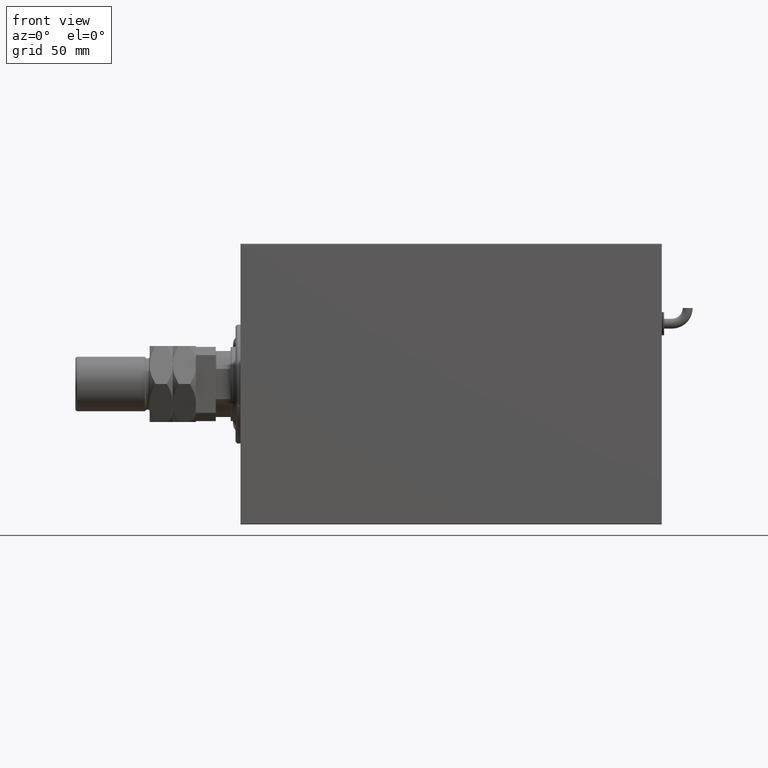
[diagram: clean part render]
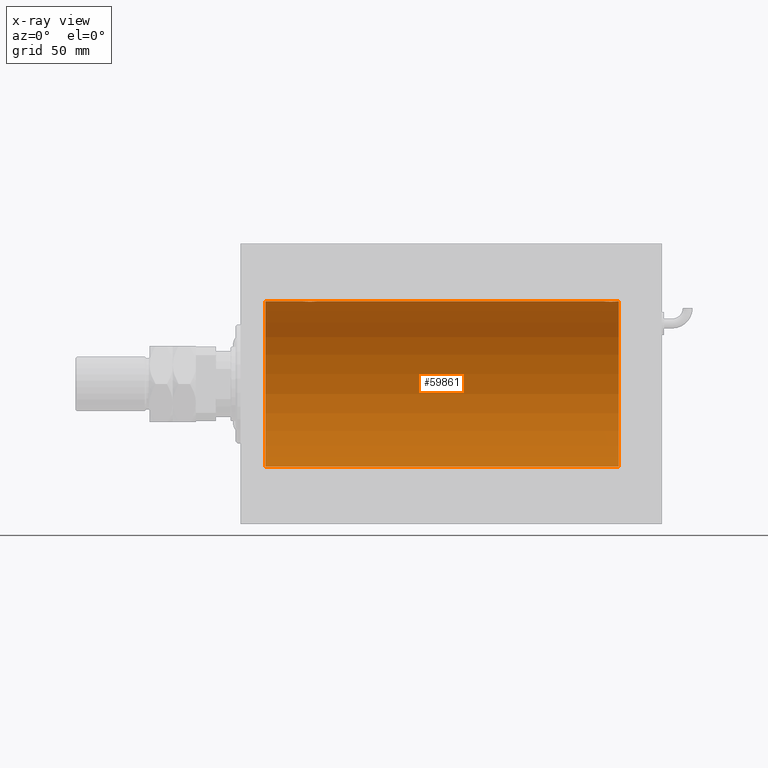
[diagram: x-ray — body ghosted, one internal face saturated and labeled with its STEP entity id]
A machine part, front view, then the same camera in x-ray: the body is ghosted and one INTERNAL B-rep face — a face not visible from any outside direction — is saturated and labeled: STEP entity #59861.
In plain terms, the highlighted cylindrical surface (partial cylindrical patch) has radius 50 mm, axis along (-1, -0, -0).
Its self-contained STEP definition (entity closure, byte-faithful):
#886 = ORIENTED_EDGE ( 'NONE', *, *, #18130, .F. ) ;
#1224 = VECTOR ( 'NONE', #3097, 1000.000000000000000 ) ;
#1238 = CARTESIAN_POINT ( 'NONE',  ( 229.0000000000000000, 0.000000000000000000, 50.00000000000000000 ) ) ;
#1621 = CARTESIAN_POINT ( 'NONE',  ( 220.7968900733967814, 2.807369215369729165, 49.92152015083319583 ) ) ;
#1920 = CARTESIAN_POINT ( 'NONE',  ( 223.4424768969731190, 4.222431257622158540, 49.82142152089561904 ) ) ;
#2224 = CARTESIAN_POINT ( 'NONE',  ( 14.99999999999998579, 0.000000000000000000, 50.00000000000000000 ) ) ;
#2264 = VERTEX_POINT ( 'NONE', #2224 ) ;
#3097 = DIRECTION ( 'NONE',  ( -1.000000000000000000, -0.000000000000000000, -0.000000000000000000 ) ) ;
#3649 = VERTEX_POINT ( 'NONE', #39758 ) ;
#3765 = CARTESIAN_POINT ( 'NONE',  ( 39.86883186234136645, 3.687449343139588720, 49.86408027804464638 ) ) ;
#4063 = CARTESIAN_POINT ( 'NONE',  ( 40.89727867996202093, 4.113850194901004897, 49.83050476025722020 ) ) ;
#4372 = CARTESIAN_POINT ( 'NONE',  ( 39.40842139494907315, 3.379775232620388259, 49.88587880363004956 ) ) ;
#4595 = CARTESIAN_POINT ( 'NONE',  ( 229.0000000000000000, 0.000000000000000000, 50.00000000000000000 ) ) ;
#5374 = DIRECTION ( 'NONE',  ( -1.000000000000000000, 0.000000000000000000, 0.000000000000000000 ) ) ;
#5730 = ORIENTED_EDGE ( 'NONE', *, *, #15946, .T. ) ;
#5847 = DIRECTION ( 'NONE',  ( -1.000000000000000000, 0.000000000000000000, 0.000000000000000000 ) ) ;
#6283 = CARTESIAN_POINT ( 'NONE',  ( 222.6322789095960104, 4.033536463572232833, 49.83715477915254866 ) ) ;
#6855 = VERTEX_POINT ( 'NONE', #31552 ) ;
#6883 = CARTESIAN_POINT ( 'NONE',  ( 219.9669070468553116, 1.369053668635234811, 49.98191709664471460 ) ) ;
#8994 = LINE ( 'NONE', #22077, #1224 ) ;
#9024 = CARTESIAN_POINT ( 'NONE',  ( 46.03257388568555797, 1.370567417712651670, 49.98187507657574713 ) ) ;
#9331 = CARTESIAN_POINT ( 'NONE',  ( 39.19378685061395373, 3.204122793140518066, 49.89762612798256924 ) ) ;
#9627 = EDGE_LOOP ( 'NONE', ( #29288, #886, #41464, #49609, #5730, #14949, #16648, #41128 ) ) ;
#10942 = CARTESIAN_POINT ( 'NONE',  ( 222.8972786799620849, 4.113850194901012891, 49.83050476025721309 ) ) ;
#11051 = VERTEX_POINT ( 'NONE', #55969 ) ;
#11170 = DIRECTION ( 'NONE',  ( 0.000000000000000000, 0.000000000000000000, 1.000000000000000000 ) ) ;
#11773 = FACE_OUTER_BOUND ( 'NONE', #9627, .T. ) ;
#12158 = CARTESIAN_POINT ( 'NONE',  ( 221.1937868506140035, 3.204122793140516734, 49.89762612798256924 ) ) ;
#12343 = B_SPLINE_CURVE_WITH_KNOTS ( 'NONE', 3,
 ( #14400, #43335, #19688, #33993, #38675, #57666, #44553, #49529, #34906, #20881, #49826, #15930, #44842, #29920, #35815, #48921, #16229, #15638, #1920, #10942, #6283, #39868, #39583, #54518, #12158, #1621, #35210, #49226, #21181, #6883, #26155, #58856, #40168, #58568 ),
 .UNSPECIFIED., .F., .F.,
 ( 4, 2, 2, 2, 2, 2, 2, 2, 2, 2, 2, 2, 2, 2, 2, 2, 4 ),
 ( 3.172014289387592084E-18, 0.0008308394705804767041, 0.001661678941160950372, 0.002492518411741423932, 0.003323357882321897275, 0.004154197352902371486, 0.004985036823482845263, 0.005815876294063319039, 0.006646715764643793684, 0.007477555235224268328, 0.008308394705804742972, 0.009139234176385218483, 0.009970073646965693995, 0.01080091311754616777, 0.01163175258812664328, 0.01246259205870711879, 0.01329343152928759257 ),
 .UNSPECIFIED. ) ;
#12424 = DIRECTION ( 'NONE',  ( -1.000000000000000000, -0.000000000000000000, -0.000000000000000000 ) ) ;
#12787 = CARTESIAN_POINT ( 'NONE',  ( 44.59471155064524339, 3.377583483857619306, 49.88603192934378683 ) ) ;
#13713 = CARTESIAN_POINT ( 'NONE',  ( 38.18018918912861892, 1.883929957684040257, 49.96515938649660171 ) ) ;
#13956 = VECTOR ( 'NONE', #12424, 1000.000000000000000 ) ;
#14013 = CARTESIAN_POINT ( 'NONE',  ( 38.62104269143859625, 2.592639214541032633, 49.93326838038160531 ) ) ;
#14400 = CARTESIAN_POINT ( 'NONE',  ( 228.2500000000000284, 3.264240518254796977E-15, 50.00000000000000000 ) ) ;
#14949 = ORIENTED_EDGE ( 'NONE', *, *, #59599, .T. ) ;
#14966 = EDGE_CURVE ( 'NONE', #11051, #3649, #52815, .T. ) ;
#15638 = CARTESIAN_POINT ( 'NONE',  ( 223.7241931321525215, 4.250099715408719447, 49.81903905555740408 ) ) ;
#15930 = CARTESIAN_POINT ( 'NONE',  ( 226.1300936179968346, 3.688265093516111648, 49.86402463145034858 ) ) ;
#15946 = EDGE_CURVE ( 'NONE', #16308, #17321, #34217, .T. ) ;
#16229 = CARTESIAN_POINT ( 'NONE',  ( 224.2788714507149734, 4.249899732140190345, 49.81905611587625060 ) ) ;
#16308 = VERTEX_POINT ( 'NONE', #54884 ) ;
#16648 = ORIENTED_EDGE ( 'NONE', *, *, #19844, .T. ) ;
#17321 = VERTEX_POINT ( 'NONE', #49677 ) ;
#17761 = CARTESIAN_POINT ( 'NONE',  ( 38.31327765660727636, 2.132418568805246384, 49.95503838744804881 ) ) ;
#18130 = EDGE_CURVE ( 'NONE', #11051, #53860, #46695, .T. ) ;
#18364 = CARTESIAN_POINT ( 'NONE',  ( 42.55474037692811606, 4.222915468341955858, 49.82138079020267440 ) ) ;
#19223 = CARTESIAN_POINT ( 'NONE',  ( 229.0000000000000000, 0.000000000000000000, 0.000000000000000000 ) ) ;
#19688 = CARTESIAN_POINT ( 'NONE',  ( 228.2224169000531333, 0.5571669497596910547, 49.99763400332482632 ) ) ;
#19844 = EDGE_CURVE ( 'NONE', #42692, #2264, #51021, .T. ) ;
#19873 = AXIS2_PLACEMENT_3D ( 'NONE', #19223, #5847, #33553 ) ;
#20198 = DIRECTION ( 'NONE',  ( -1.000000000000000000, -0.000000000000000000, -0.000000000000000000 ) ) ;
#20809 = DIRECTION ( 'NONE',  ( -1.000000000000000000, -0.000000000000000000, -0.000000000000000000 ) ) ;
#20881 = CARTESIAN_POINT ( 'NONE',  ( 226.8086300572497578, 3.201703158387199988, 49.89777173894965756 ) ) ;
#21181 = CARTESIAN_POINT ( 'NONE',  ( 220.1801891891286402, 1.883929957684048695, 49.96515938649660882 ) ) ;
#22077 = CARTESIAN_POINT ( 'NONE',  ( 229.0000000000000000, 6.123233995736764507E-15, -50.00000000000000000 ) ) ;
#22423 = CARTESIAN_POINT ( 'NONE',  ( 40.11755606404297225, 3.820534283589327451, 49.85393595968218960 ) ) ;
#22730 = CARTESIAN_POINT ( 'NONE',  ( 46.22241690005309778, 0.5571669497596987153, 49.99763400332481922 ) ) ;
#23028 = CARTESIAN_POINT ( 'NONE',  ( 46.25000000000003553, 0.2809437491437575818, 50.00000000000000000 ) ) ;
#23341 = CARTESIAN_POINT ( 'NONE',  ( 46.11436432943420272, 1.100566060006330726, 49.98862465889503426 ) ) ;
#26155 = CARTESIAN_POINT ( 'NONE',  ( 219.8865276964838529, 1.104090919659205694, 49.98855088738323360 ) ) ;
#28316 = CARTESIAN_POINT ( 'NONE',  ( 44.80863005724961567, 3.201703158387180448, 49.89777173894965046 ) ) ;
#28476 = AXIS2_PLACEMENT_3D ( 'NONE', #39798, #20809, #11170 ) ;
#28706 = VECTOR ( 'NONE', #20198, 1000.000000000000000 ) ;
#29144 = DIRECTION ( 'NONE',  ( -1.000000000000000000, -0.000000000000000000, -0.000000000000000000 ) ) ;
#29288 = ORIENTED_EDGE ( 'NONE', *, *, #48657, .F. ) ;
#29920 = CARTESIAN_POINT ( 'NONE',  ( 225.3714460322091497, 4.032152715176935409, 49.83726562785247438 ) ) ;
#31552 = CARTESIAN_POINT ( 'NONE',  ( 14.99999999999998579, 6.123233995736764507E-15, -50.00000000000000000 ) ) ;
#31799 = B_SPLINE_CURVE_WITH_KNOTS ( 'NONE', 3,
 ( #41420, #23028, #22730, #23341, #9024, #46085, #42023, #36443, #32377, #28316, #12787, #37049, #46999, #61327, #61016, #18364, #60412, #37656, #41725, #4063, #37352, #22423, #3765, #4372, #9331, #56655, #14013, #17761, #13713, #42641, #36746, #56042, #32981, #32681 ),
 .UNSPECIFIED., .F., .F.,
 ( 4, 2, 2, 2, 2, 2, 2, 2, 2, 2, 2, 2, 2, 2, 2, 2, 4 ),
 ( 1.154406031039847406E-17, 0.0008308394705804858114, 0.001661678941160960130, 0.002492518411741434774, 0.003323357882321908985, 0.004154197352902382762, 0.004985036823482857406, 0.005815876294063331182, 0.006646715764643805827, 0.007477555235224280471, 0.008308394705804755115, 0.009139234176385228892, 0.009970073646965704403, 0.01080091311754617818, 0.01163175258812665196, 0.01246259205870712747, 0.01329343152928760124 ),
 .UNSPECIFIED. ) ;
#32377 = CARTESIAN_POINT ( 'NONE',  ( 45.20063781226177468, 2.809844036175777493, 49.92137121633495411 ) ) ;
#32681 = CARTESIAN_POINT ( 'NONE',  ( 37.75000000000000711, -2.480809774739037926E-23, 50.00000000000000000 ) ) ;
#32756 = EDGE_CURVE ( 'NONE', #3649, #16308, #12343, .T. ) ;
#32981 = CARTESIAN_POINT ( 'NONE',  ( 37.75000000000001421, 0.2774387832574384261, 50.00000000000000711 ) ) ;
#33553 = DIRECTION ( 'NONE',  ( 0.000000000000000000, 0.000000000000000000, 1.000000000000000000 ) ) ;
#33993 = CARTESIAN_POINT ( 'NONE',  ( 228.1143643294343235, 1.100566060006324509, 49.98862465889504136 ) ) ;
#34217 = LINE ( 'NONE', #1238, #28706 ) ;
#34906 = CARTESIAN_POINT ( 'NONE',  ( 227.2006378122617889, 2.809844036175798365, 49.92137121633495411 ) ) ;
#35210 = CARTESIAN_POINT ( 'NONE',  ( 220.6210426914386176, 2.592639214541025083, 49.93326838038159821 ) ) ;
#35815 = CARTESIAN_POINT ( 'NONE',  ( 225.1034621127867581, 4.113772393339290012, 49.83051149236716526 ) ) ;
#36443 = CARTESIAN_POINT ( 'NONE',  ( 45.38010486300764512, 2.591239970584172880, 49.93334495304385712 ) ) ;
#36746 = CARTESIAN_POINT ( 'NONE',  ( 37.88652769648385288, 1.104090919659207248, 49.98855088738324071 ) ) ;
#37049 = CARTESIAN_POINT ( 'NONE',  ( 44.13009361799669250, 3.688265093516105875, 49.86402463145032016 ) ) ;
#37352 = CARTESIAN_POINT ( 'NONE',  ( 40.63227890959592514, 4.033536463572222175, 49.83715477915254155 ) ) ;
#37656 = CARTESIAN_POINT ( 'NONE',  ( 41.72419313215250014, 4.250099715408711454, 49.81903905555740408 ) ) ;
#38675 = CARTESIAN_POINT ( 'NONE',  ( 228.0325738856856219, 1.370567417712645897, 49.98187507657574713 ) ) ;
#39583 = CARTESIAN_POINT ( 'NONE',  ( 221.8688318623414375, 3.687449343139598490, 49.86408027804463927 ) ) ;
#39758 = CARTESIAN_POINT ( 'NONE',  ( 228.2500000000000284, 3.264240518254796977E-15, 50.00000000000000000 ) ) ;
#39798 = CARTESIAN_POINT ( 'NONE',  ( 229.0000000000000000, 0.000000000000000000, 0.000000000000000000 ) ) ;
#39868 = CARTESIAN_POINT ( 'NONE',  ( 222.1175560640430149, 3.820534283589338109, 49.85393595968218250 ) ) ;
#40168 = CARTESIAN_POINT ( 'NONE',  ( 219.7500000000000568, 0.2774387832574382595, 50.00000000000000000 ) ) ;
#41128 = ORIENTED_EDGE ( 'NONE', *, *, #55325, .T. ) ;
#41420 = CARTESIAN_POINT ( 'NONE',  ( 46.25000000000000000, 5.983909456282587589E-15, 50.00000000000000000 ) ) ;
#41436 = CARTESIAN_POINT ( 'NONE',  ( 37.75000000000000711, -2.480809774739037926E-23, 50.00000000000000000 ) ) ;
#41464 = ORIENTED_EDGE ( 'NONE', *, *, #14966, .T. ) ;
#41725 = CARTESIAN_POINT ( 'NONE',  ( 41.44247689697309056, 4.222431257622151435, 49.82142152089561904 ) ) ;
#42023 = CARTESIAN_POINT ( 'NONE',  ( 45.68858383995013384, 2.129315083715799251, 49.95517470752238864 ) ) ;
#42641 = CARTESIAN_POINT ( 'NONE',  ( 37.96690704685526185, 1.369053668635227927, 49.98191709664471460 ) ) ;
#42692 = VERTEX_POINT ( 'NONE', #41436 ) ;
#43335 = CARTESIAN_POINT ( 'NONE',  ( 228.2500000000000568, 0.2809437491437558609, 50.00000000000002842 ) ) ;
#43635 = VECTOR ( 'NONE', #29144, 1000.000000000000000 ) ;
#44553 = CARTESIAN_POINT ( 'NONE',  ( 227.6885838399501836, 2.129315083715787704, 49.95517470752238864 ) ) ;
#44842 = CARTESIAN_POINT ( 'NONE',  ( 225.8828700758230639, 3.820198949706825164, 49.85396053238191172 ) ) ;
#46085 = CARTESIAN_POINT ( 'NONE',  ( 45.81916120116850522, 1.885236035486737016, 49.96510958966688065 ) ) ;
#46695 = CIRCLE ( 'NONE', #19873, 50.00000000000000000 ) ;
#46999 = CARTESIAN_POINT ( 'NONE',  ( 43.88287007582299282, 3.820198949706820279, 49.85396053238189751 ) ) ;
#47180 = AXIS2_PLACEMENT_3D ( 'NONE', #48010, #5374, #48323 ) ;
#48010 = CARTESIAN_POINT ( 'NONE',  ( 14.99999999999998579, 0.000000000000000000, 0.000000000000000000 ) ) ;
#48323 = DIRECTION ( 'NONE',  ( 0.000000000000000000, 0.000000000000000000, 1.000000000000000000 ) ) ;
#48657 = EDGE_CURVE ( 'NONE', #53860, #6855, #8994, .T. ) ;
#48738 = CARTESIAN_POINT ( 'NONE',  ( 229.0000000000000000, 6.123233995736764507E-15, -50.00000000000000000 ) ) ;
#48921 = CARTESIAN_POINT ( 'NONE',  ( 224.5547403769281232, 4.222915468341965628, 49.82138079020267440 ) ) ;
#49226 = CARTESIAN_POINT ( 'NONE',  ( 220.3132776566073119, 2.132418568805235726, 49.95503838744805591 ) ) ;
#49529 = CARTESIAN_POINT ( 'NONE',  ( 227.3801048630076593, 2.591239970584164887, 49.93334495304387843 ) ) ;
#49609 = ORIENTED_EDGE ( 'NONE', *, *, #32756, .T. ) ;
#49677 = CARTESIAN_POINT ( 'NONE',  ( 46.25000000000000000, 5.983909456282587589E-15, 50.00000000000000000 ) ) ;
#49826 = CARTESIAN_POINT ( 'NONE',  ( 226.5947115506452860, 3.377583483857621971, 49.88603192934379393 ) ) ;
#51021 = LINE ( 'NONE', #60044, #13956 ) ;
#52815 = LINE ( 'NONE', #4595, #43635 ) ;
#53860 = VERTEX_POINT ( 'NONE', #48738 ) ;
#54133 = CYLINDRICAL_SURFACE ( 'NONE', #28476, 50.00000000000000000 ) ;
#54518 = CARTESIAN_POINT ( 'NONE',  ( 221.4084213949491584, 3.379775232620398917, 49.88587880363006377 ) ) ;
#54884 = CARTESIAN_POINT ( 'NONE',  ( 219.7500000000000284, -2.480257572105383217E-23, 50.00000000000000000 ) ) ;
#55325 = EDGE_CURVE ( 'NONE', #2264, #6855, #58119, .T. ) ;
#55969 = CARTESIAN_POINT ( 'NONE',  ( 229.0000000000000000, 0.000000000000000000, 50.00000000000000000 ) ) ;
#56042 = CARTESIAN_POINT ( 'NONE',  ( 37.77780584836772704, 0.5592384970569925784, 49.99761483193759659 ) ) ;
#56655 = CARTESIAN_POINT ( 'NONE',  ( 38.79689007339678142, 2.807369215369732718, 49.92152015083319583 ) ) ;
#57666 = CARTESIAN_POINT ( 'NONE',  ( 227.8191612011686118, 1.885236035486734796, 49.96510958966688776 ) ) ;
#58119 = CIRCLE ( 'NONE', #47180, 50.00000000000000000 ) ;
#58568 = CARTESIAN_POINT ( 'NONE',  ( 219.7500000000000284, -2.480257572105383217E-23, 50.00000000000000000 ) ) ;
#58856 = CARTESIAN_POINT ( 'NONE',  ( 219.7778058483677910, 0.5592384970569878044, 49.99761483193760370 ) ) ;
#59599 = EDGE_CURVE ( 'NONE', #17321, #42692, #31799, .T. ) ;
#59861 = ADVANCED_FACE ( 'NONE', ( #11773 ), #54133, .F. ) ;
#60044 = CARTESIAN_POINT ( 'NONE',  ( 229.0000000000000000, 0.000000000000000000, 50.00000000000000000 ) ) ;
#60412 = CARTESIAN_POINT ( 'NONE',  ( 42.27887145071498765, 4.249899732140181463, 49.81905611587625060 ) ) ;
#61016 = CARTESIAN_POINT ( 'NONE',  ( 43.10346211278672257, 4.113772393339279354, 49.83051149236716526 ) ) ;
#61327 = CARTESIAN_POINT ( 'NONE',  ( 43.37144603220910710, 4.032152715176929192, 49.83726562785247438 ) ) ;